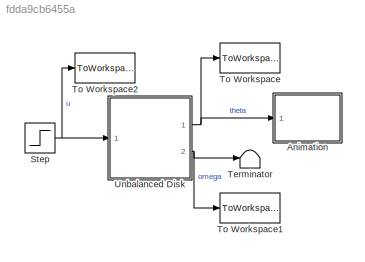
MODEL slx_fdda9cb6455a
KIND model
CONFIG AbsTol = auto
CONFIG EnableMultiTasking = off
CONFIG FixedStep = auto
CONFIG MaxStep = 1/60
CONFIG MinStep = auto
CONFIG PreLoadFcn = load('parameters.mat');
CONFIG RelTol = 1e-3
CONFIG SampleTimeConstraint = Unconstrained
CONFIG Solver = VariableStepAuto
CONFIG SolverName = VariableStepAuto
CONFIG StartTime = 0.0
CONFIG StopTime = 10.0
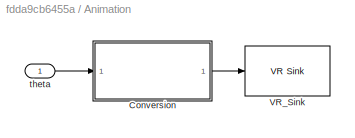
BLOCK [SubSystem] Animation
  Ports = [1]
  RequestExecContextInheritance = off
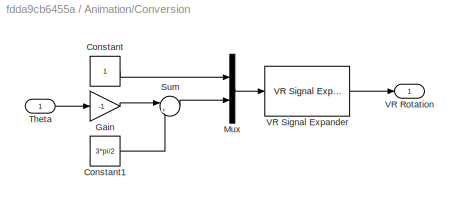
BLOCK [SubSystem] Animation/Conversion
  Ports = [1, 1]
  RequestExecContextInheritance = off
BLOCK [Constant] Animation/Conversion/Constant
BLOCK [Constant] Animation/Conversion/Constant1
  Value = 3*pi/2
BLOCK [Gain] Animation/Conversion/Gain
  Gain = -1
  OutDataTypeStr = Inherit: Inherit via internal rule
  ParamDataTypeStr = Inherit: Inherit via internal rule
  SaturateOnIntegerOverflow = off
BLOCK [Mux] Animation/Conversion/Mux
  DisplayOption = bar
  Inputs = 2
  Ports = [2, 1]
BLOCK [Sum] Animation/Conversion/Sum
  IconShape = round
  InputSameDT = off
  Inputs = |++
  OutDataTypeStr = Inherit: Inherit via internal rule
  Ports = [2, 1]
  SaturateOnIntegerOverflow = off
BLOCK [Inport] Animation/Conversion/Theta
  IconDisplay = Port number
BLOCK [Outport] Animation/Conversion/VR Rotation
  IconDisplay = Port number
BLOCK [Reference] Animation/Conversion/VR Signal Expander  REF=vrlib/VR Signal Expander
  Ports = [1, 1]
  SourceBlock = vrlib/VR Signal Expander
  SourceProductBaseCode = VR
  SourceProductName = Simulink 3D Animation
  SourceType = VR Signal Expander
BLOCK [Reference] Animation/VR_Sink  REF=vrlib/VR Sink
  InstantiateOnLoad = on
  Ports = [1]
  SourceBlock = vrlib/VR Sink
  SourceProductBaseCode = VR
  SourceProductName = Simulink 3D Animation
  SourceType = Virtual Reality Sink
BLOCK [Inport] Animation/theta
  IconDisplay = Port number
BLOCK [Step] Step
  After = 3
  SampleTime = 0
BLOCK [Terminator] Terminator
BLOCK [ToWorkspace] To Workspace
  FixptAsFi = on
  MaxDataPoints = inf
  Ports = [1]
  SampleTime = -1
  SaveFormat = Timeseries
  VariableName = theta
BLOCK [ToWorkspace] To Workspace1
  FixptAsFi = on
  MaxDataPoints = inf
  Ports = [1]
  SampleTime = -1
  SaveFormat = Timeseries
  VariableName = omega
BLOCK [ToWorkspace] To Workspace2
  FixptAsFi = on
  MaxDataPoints = inf
  Ports = [1]
  SampleTime = -1
  SaveFormat = Timeseries
  VariableName = u
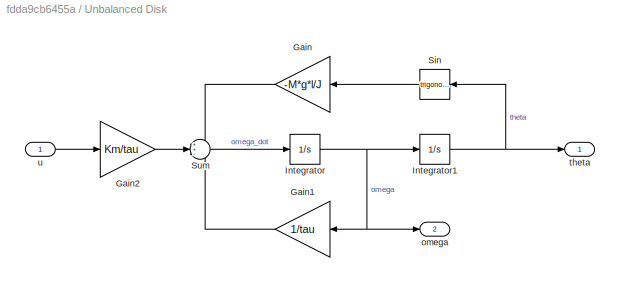
BLOCK [SubSystem] Unbalanced Disk
  Ports = [1, 2]
  RequestExecContextInheritance = off
BLOCK [Gain] Unbalanced Disk/Gain
  Gain = -M*g*l/J
  OutDataTypeStr = Inherit: Inherit via internal rule
  ParamDataTypeStr = Inherit: Inherit via internal rule
  SaturateOnIntegerOverflow = off
BLOCK [Gain] Unbalanced Disk/Gain1
  Gain = 1/tau
  OutDataTypeStr = Inherit: Inherit via internal rule
  ParamDataTypeStr = Inherit: Inherit via internal rule
  SaturateOnIntegerOverflow = off
BLOCK [Gain] Unbalanced Disk/Gain2
  Gain = Km/tau
  OutDataTypeStr = Inherit: Inherit via internal rule
  ParamDataTypeStr = Inherit: Inherit via internal rule
  SaturateOnIntegerOverflow = off
BLOCK [Integrator] Unbalanced Disk/Integrator
  InitialCondition = omega_0
  Ports = [1, 1]
BLOCK [Integrator] Unbalanced Disk/Integrator1
  InitialCondition = theta_0
  Ports = [1, 1]
BLOCK [Trigonometry] Unbalanced Disk/Sin
  Ports = [1, 1]
BLOCK [Sum] Unbalanced Disk/Sum
  IconShape = round
  InputSameDT = off
  Inputs = ++-
  OutDataTypeStr = Inherit: Inherit via internal rule
  Ports = [3, 1]
  SaturateOnIntegerOverflow = off
BLOCK [Outport] Unbalanced Disk/omega
  IconDisplay = Port number
  Port = 2
BLOCK [Outport] Unbalanced Disk/theta
  IconDisplay = Port number
BLOCK [Inport] Unbalanced Disk/u
  IconDisplay = Port number
LINE Animation/Conversion/Constant1:1 -> Animation/Conversion/Sum:2
LINE Animation/Conversion/Constant:1 -> Animation/Conversion/Mux:1
LINE Animation/Conversion/Gain:1 -> Animation/Conversion/Sum:1
LINE Animation/Conversion/Mux:1 -> Animation/Conversion/VR Signal Expander:1
LINE Animation/Conversion/Sum:1 -> Animation/Conversion/Mux:2
LINE Animation/Conversion/Theta:1 -> Animation/Conversion/Gain:1
LINE Animation/Conversion/VR Signal Expander:1 -> Animation/Conversion/VR Rotation:1
LINE Animation/Conversion:1 -> Animation/VR_Sink:1
LINE Animation/theta:1 -> Animation/Conversion:1
NET Step:1 -> To Workspace2:1, Unbalanced Disk:1
LINE Unbalanced Disk/Gain1:1 -> Unbalanced Disk/Sum:3
LINE Unbalanced Disk/Gain2:1 -> Unbalanced Disk/Sum:2
LINE Unbalanced Disk/Gain:1 -> Unbalanced Disk/Sum:1
NET Unbalanced Disk/Integrator1:1 -> Unbalanced Disk/Sin:1, Unbalanced Disk/theta:1
NET Unbalanced Disk/Integrator:1 -> Unbalanced Disk/Gain1:1, Unbalanced Disk/Integrator1:1, Unbalanced Disk/omega:1
LINE Unbalanced Disk/Sin:1 -> Unbalanced Disk/Gain:1
LINE Unbalanced Disk/Sum:1 -> Unbalanced Disk/Integrator:1
LINE Unbalanced Disk/u:1 -> Unbalanced Disk/Gain2:1
NET Unbalanced Disk:1 -> Animation:1, To Workspace:1
NET Unbalanced Disk:2 -> Terminator:1, To Workspace1:1
note: NET lines group one-source signal fan-out (src -> all destinations, sorted); 1:1 wires keep LINE
